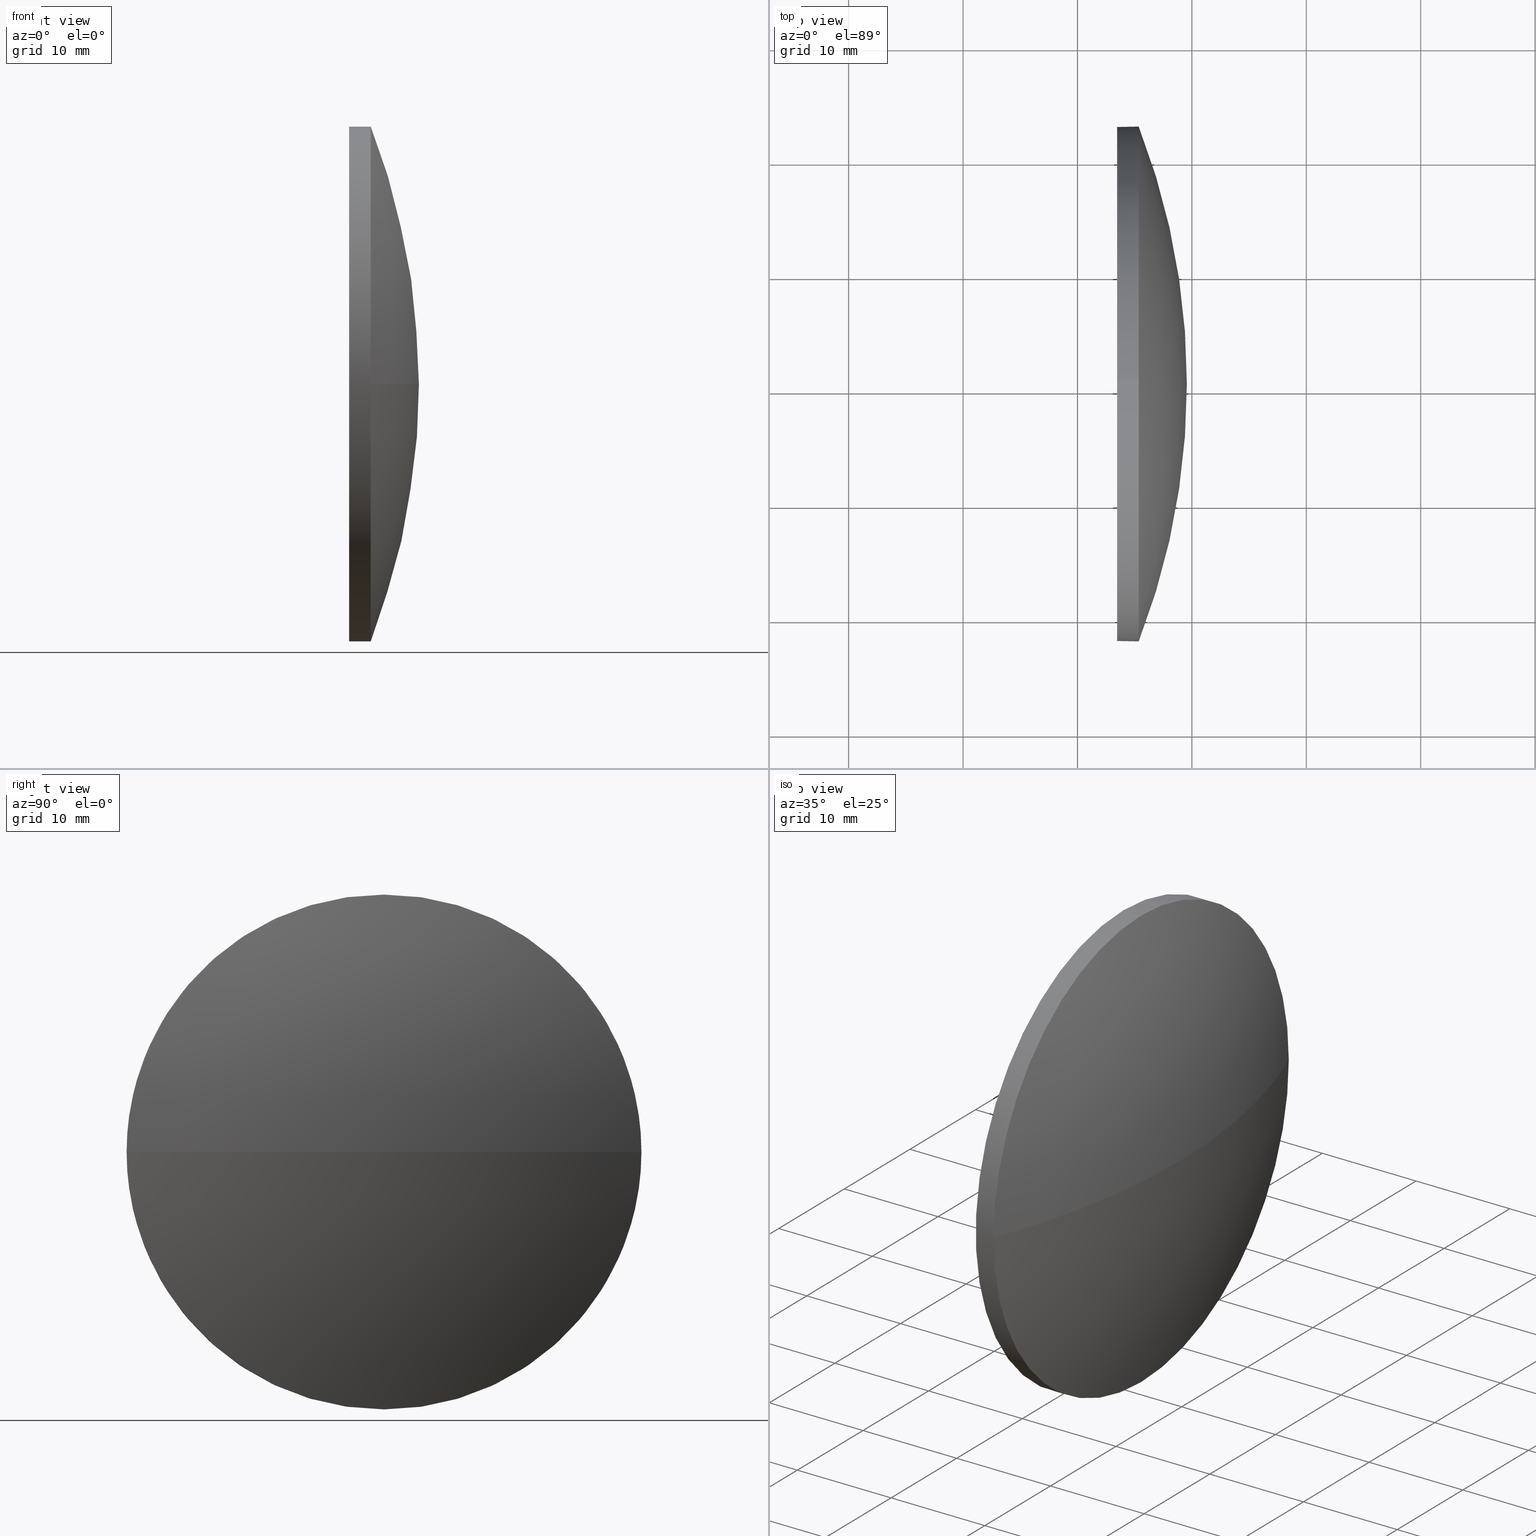
[diagram: canonical four-view strip — front | top / right | iso, engineering-drawing reading convention]
A machine part, canonical four-view strip (front | top / right | iso — engineering-drawing reading convention). The complete STEP part file that produces these views, byte-faithful:
ISO-10303-21;
HEADER;
FILE_DESCRIPTION (( 'STEP AP214' ),
    '1' );
FILE_NAME ('100065.STEP',
    '2019-04-30T06:22:48',
    ( '' ),
    ( '' ),
    'SwSTEP 2.0',
    'SolidWorks 2016',
    '' );
FILE_SCHEMA (( 'AUTOMOTIVE_DESIGN' ));
ENDSEC;

DATA;
#1 = ORIENTED_EDGE ( 'NONE', *, *, #91, .T. ) ;
#2 = STYLED_ITEM ( 'NONE', ( #31 ), #32 ) ;
#3 = PRODUCT_DEFINITION_SHAPE ( 'NONE', 'NONE',  #139 ) ;
#4 = ORIENTED_EDGE ( 'NONE', *, *, #173, .F. ) ;
#5 = ADVANCED_FACE ( 'NONE', ( #88 ), #152, .T. ) ;
#6 = CARTESIAN_POINT ( 'NONE',  ( 443.4635203188954600, 60.46347484045998000, 22.50000000000000700 ) ) ;
#7 = CARTESIAN_POINT ( 'NONE',  ( 449.5635203188954800, 60.46347484045995900, 0.0000000000000000000 ) ) ;
#8 = AXIS2_PLACEMENT_3D ( 'NONE', #34, #104, #11 ) ;
#9 = CARTESIAN_POINT ( 'NONE',  ( 443.4635203188954600, 60.46347484045998000, 0.0000000000000000000 ) ) ;
#10 = EDGE_LOOP ( 'NONE', ( #122, #166, #18, #79 ) ) ;
#11 = DIRECTION ( 'NONE',  ( 1.000000000000000000, 0.0000000000000000000, 0.0000000000000000000 ) ) ;
#12 = AXIS2_PLACEMENT_3D ( 'NONE', #96, #124, #112 ) ;
#13 = VERTEX_POINT ( 'NONE', #6 ) ;
#14 = DIRECTION ( 'NONE',  ( 0.0000000000000000000, 1.000000000000000000, 0.0000000000000000000 ) ) ;
#15 = APPLICATION_PROTOCOL_DEFINITION ( 'draft international standard', 'automotive_design', 1998, #35 ) ;
#16 = DIRECTION ( 'NONE',  ( 0.0000000000000000000, 0.0000000000000000000, 1.000000000000000000 ) ) ;
#17 = SHAPE_DEFINITION_REPRESENTATION ( #3, #32 ) ;
#18 = ORIENTED_EDGE ( 'NONE', *, *, #94, .F. ) ;
#19 = ORIENTED_EDGE ( 'NONE', *, *, #38, .T. ) ;
#20 = AXIS2_PLACEMENT_3D ( 'NONE', #67, #89, #14 ) ;
#21 = CARTESIAN_POINT ( 'NONE',  ( 387.3338172310093900, 60.46347484045995200, 0.0000000000000000000 ) ) ;
#22 = DIRECTION ( 'NONE',  ( -1.000000000000000000, -0.0000000000000000000, -0.0000000000000000000 ) ) ;
#23 = DIRECTION ( 'NONE',  ( 0.0000000000000000000, 0.0000000000000000000, -1.000000000000000000 ) ) ;
#24 = EDGE_LOOP ( 'NONE', ( #136, #163, #74, #46, #33 ) ) ;
#25 = SURFACE_STYLE_FILL_AREA ( #155 ) ;
#26 = SURFACE_STYLE_FILL_AREA ( #170 ) ;
#27 =( LENGTH_UNIT ( ) NAMED_UNIT ( * ) SI_UNIT ( .MILLI., .METRE. ) );
#28 = VECTOR ( 'NONE', #22, 1000.000000000000000 ) ;
#29 = EDGE_LOOP ( 'NONE', ( #110, #36, #37, #19, #185 ) ) ;
#30 = DIRECTION ( 'NONE',  ( 0.0000000000000000000, 0.0000000000000000000, 1.000000000000000000 ) ) ;
#31 = PRESENTATION_STYLE_ASSIGNMENT (( #70 ) ) ;
#32 = ADVANCED_BREP_SHAPE_REPRESENTATION ( '100065', ( #128, #39 ), #44 ) ;
#33 = ORIENTED_EDGE ( 'NONE', *, *, #94, .T. ) ;
#34 = CARTESIAN_POINT ( 'NONE',  ( 387.3338172310093900, 60.46347484045995200, 0.0000000000000000000 ) ) ;
#35 = APPLICATION_CONTEXT ( 'automotive_design' ) ;
#36 = ORIENTED_EDGE ( 'NONE', *, *, #138, .T. ) ;
#37 = ORIENTED_EDGE ( 'NONE', *, *, #158, .T. ) ;
#38 = EDGE_CURVE ( 'NONE', #95, #13, #71, .T. ) ;
#39 = AXIS2_PLACEMENT_3D ( 'NONE', #109, #16, #150 ) ;
#40 = DIRECTION ( 'NONE',  ( 0.0000000000000000000, 1.224646799147353200E-016, -1.000000000000000000 ) ) ;
#41 = CARTESIAN_POINT ( 'NONE',  ( 445.3535203188954500, 60.46347484045998000, 0.0000000000000000000 ) ) ;
#42 = CARTESIAN_POINT ( 'NONE',  ( 387.3338172310093900, 60.46347484045995200, 0.0000000000000000000 ) ) ;
#43 = ADVANCED_FACE ( 'NONE', ( #111 ), #65, .T. ) ;
#44 =( GEOMETRIC_REPRESENTATION_CONTEXT ( 3 ) GLOBAL_UNCERTAINTY_ASSIGNED_CONTEXT ( ( #172 ) ) GLOBAL_UNIT_ASSIGNED_CONTEXT ( ( #27, #171, #72 ) ) REPRESENTATION_CONTEXT ( 'NONE', 'WORKASPACE' ) );
#45 = CARTESIAN_POINT ( 'NONE',  ( 445.3535203188954500, 60.46347484045998000, 22.50000000000000700 ) ) ;
#46 = ORIENTED_EDGE ( 'NONE', *, *, #38, .F. ) ;
#47 = DIRECTION ( 'NONE',  ( -1.000000000000000000, -0.0000000000000000000, -0.0000000000000000000 ) ) ;
#48 = AXIS2_PLACEMENT_3D ( 'NONE', #42, #40, #153 ) ;
#49 = ORIENTED_EDGE ( 'NONE', *, *, #125, .T. ) ;
#50 = MECHANICAL_DESIGN_GEOMETRIC_PRESENTATION_REPRESENTATION (  '', ( #2 ), #73 ) ;
#51 = CIRCLE ( 'NONE', #48, 62.22970308788607200 ) ;
#52 = SPHERICAL_SURFACE ( 'NONE', #20, 62.22970308788606500 ) ;
#53 = PRODUCT_RELATED_PRODUCT_CATEGORY ( 'part', '', ( #137 ) ) ;
#54 = EDGE_LOOP ( 'NONE', ( #4, #1, #76, #126 ) ) ;
#55 = AXIS2_PLACEMENT_3D ( 'NONE', #140, #99, #80 ) ;
#56 = CIRCLE ( 'NONE', #177, 22.50000000000000700 ) ;
#57 = AXIS2_PLACEMENT_3D ( 'NONE', #41, #63, #59 ) ;
#58 = ORIENTED_EDGE ( 'NONE', *, *, #181, .T. ) ;
#59 = DIRECTION ( 'NONE',  ( 0.0000000000000000000, 0.0000000000000000000, 1.000000000000000000 ) ) ;
#60 = PRODUCT_DEFINITION_FORMATION_WITH_SPECIFIED_SOURCE ( '�κ�', '', #137, .NOT_KNOWN. ) ;
#61 = DIRECTION ( 'NONE',  ( -0.0000000000000000000, 0.0000000000000000000, -1.000000000000000000 ) ) ;
#62 = CIRCLE ( 'NONE', #57, 22.50000000000000700 ) ;
#63 = DIRECTION ( 'NONE',  ( -1.000000000000000000, -0.0000000000000000000, -0.0000000000000000000 ) ) ;
#64 = CARTESIAN_POINT ( 'NONE',  ( 443.4635203188954600, 60.46347484045998000, 0.0000000000000000000 ) ) ;
#65 = SPHERICAL_SURFACE ( 'NONE', #121, 62.22970308788606500 ) ;
#66 = CARTESIAN_POINT ( 'NONE',  ( 445.3535203188954500, 60.46347484045998000, 0.0000000000000000000 ) ) ;
#67 = CARTESIAN_POINT ( 'NONE',  ( 387.3338172310093900, 60.46347484045995200, 0.0000000000000000000 ) ) ;
#68 = STYLED_ITEM ( 'NONE', ( #174 ), #128 ) ;
#69 = CARTESIAN_POINT ( 'NONE',  ( 445.3535203188954500, 60.46347484045998000, 0.0000000000000000000 ) ) ;
#70 = SURFACE_STYLE_USAGE ( .BOTH. , #90 ) ;
#71 = LINE ( 'NONE', #115, #28 ) ;
#72 =( NAMED_UNIT ( * ) SI_UNIT ( $, .STERADIAN. ) SOLID_ANGLE_UNIT ( ) );
#73 =( GEOMETRIC_REPRESENTATION_CONTEXT ( 3 ) GLOBAL_UNCERTAINTY_ASSIGNED_CONTEXT ( ( #144 ) ) GLOBAL_UNIT_ASSIGNED_CONTEXT ( ( #151, #160, #186 ) ) REPRESENTATION_CONTEXT ( 'NONE', 'WORKASPACE' ) );
#74 = ORIENTED_EDGE ( 'NONE', *, *, #181, .F. ) ;
#75 = PRESENTATION_LAYER_ASSIGNMENT (  '', '', ( #2 ) ) ;
#76 = ORIENTED_EDGE ( 'NONE', *, *, #138, .F. ) ;
#77 = FACE_OUTER_BOUND ( 'NONE', #10, .T. ) ;
#78 = CARTESIAN_POINT ( 'NONE',  ( 445.3535203188954500, 37.96347484045995900, -2.755455298081544000E-015 ) ) ;
#79 = ORIENTED_EDGE ( 'NONE', *, *, #158, .F. ) ;
#80 = DIRECTION ( 'NONE',  ( 0.0000000000000000000, 0.0000000000000000000, 1.000000000000000000 ) ) ;
#81 = ADVANCED_FACE ( 'NONE', ( #114 ), #168, .T. ) ;
#82 = SURFACE_STYLE_USAGE ( .BOTH. , #165 ) ;
#83 = VERTEX_POINT ( 'NONE', #176 ) ;
#84 = AXIS2_PLACEMENT_3D ( 'NONE', #64, #100, #30 ) ;
#85 = DIRECTION ( 'NONE',  ( 0.0000000000000000000, 0.0000000000000000000, 1.000000000000000000 ) ) ;
#86 = VECTOR ( 'NONE', #47, 1000.000000000000000 ) ;
#87 = DIRECTION ( 'NONE',  ( 0.0000000000000000000, 0.0000000000000000000, 1.000000000000000000 ) ) ;
#88 = FACE_OUTER_BOUND ( 'NONE', #24, .T. ) ;
#89 = DIRECTION ( 'NONE',  ( -0.0000000000000000000, 0.0000000000000000000, -1.000000000000000000 ) ) ;
#90 = SURFACE_SIDE_STYLE ('',( #26 ) ) ;
#91 = EDGE_CURVE ( 'NONE', #92, #105, #51, .T. ) ;
#92 = VERTEX_POINT ( 'NONE', #7 ) ;
#93 =( GEOMETRIC_REPRESENTATION_CONTEXT ( 3 ) GLOBAL_UNCERTAINTY_ASSIGNED_CONTEXT ( ( #156 ) ) GLOBAL_UNIT_ASSIGNED_CONTEXT ( ( #129, #118, #102 ) ) REPRESENTATION_CONTEXT ( 'NONE', 'WORKASPACE' ) );
#94 = EDGE_CURVE ( 'NONE', #95, #83, #62, .T. ) ;
#95 = VERTEX_POINT ( 'NONE', #45 ) ;
#96 = CARTESIAN_POINT ( 'NONE',  ( 434.0287404337423700, 60.46347484045998000, 0.0000000000000000000 ) ) ;
#97 = CIRCLE ( 'NONE', #84, 22.50000000000000700 ) ;
#98 = FACE_OUTER_BOUND ( 'NONE', #146, .T. ) ;
#99 = DIRECTION ( 'NONE',  ( -1.000000000000000000, -0.0000000000000000000, -0.0000000000000000000 ) ) ;
#100 = DIRECTION ( 'NONE',  ( -1.000000000000000000, -0.0000000000000000000, -0.0000000000000000000 ) ) ;
#101 = AXIS2_PLACEMENT_3D ( 'NONE', #9, #116, #23 ) ;
#102 =( NAMED_UNIT ( * ) SI_UNIT ( $, .STERADIAN. ) SOLID_ANGLE_UNIT ( ) );
#103 = CIRCLE ( 'NONE', #131, 22.50000000000000700 ) ;
#104 = DIRECTION ( 'NONE',  ( -0.0000000000000000000, 0.0000000000000000000, 1.000000000000000000 ) ) ;
#105 = VERTEX_POINT ( 'NONE', #78 ) ;
#106 = MECHANICAL_DESIGN_GEOMETRIC_PRESENTATION_REPRESENTATION (  '', ( #68 ), #93 ) ;
#107 = CIRCLE ( 'NONE', #142, 22.50000000000000700 ) ;
#108 = PRESENTATION_LAYER_ASSIGNMENT (  '', '', ( #68 ) ) ;
#109 = CARTESIAN_POINT ( 'NONE',  ( 0.0000000000000000000, 0.0000000000000000000, 0.0000000000000000000 ) ) ;
#110 = ORIENTED_EDGE ( 'NONE', *, *, #135, .F. ) ;
#111 = FACE_OUTER_BOUND ( 'NONE', #54, .T. ) ;
#112 = DIRECTION ( 'NONE',  ( 0.0000000000000000000, 0.0000000000000000000, 1.000000000000000000 ) ) ;
#113 = CARTESIAN_POINT ( 'NONE',  ( 445.3535203188954500, 60.46347484045998000, -22.50000000000000700 ) ) ;
#114 = FACE_OUTER_BOUND ( 'NONE', #29, .T. ) ;
#115 = CARTESIAN_POINT ( 'NONE',  ( 434.0287404337423700, 60.46347484045998000, 22.50000000000000700 ) ) ;
#116 = DIRECTION ( 'NONE',  ( 1.000000000000000000, 0.0000000000000000000, 0.0000000000000000000 ) ) ;
#117 = CARTESIAN_POINT ( 'NONE',  ( 445.3535203188954500, 60.46347484045998000, 0.0000000000000000000 ) ) ;
#118 =( NAMED_UNIT ( * ) PLANE_ANGLE_UNIT ( ) SI_UNIT ( $, .RADIAN. ) );
#119 = VERTEX_POINT ( 'NONE', #113 ) ;
#120 = VERTEX_POINT ( 'NONE', #162 ) ;
#121 = AXIS2_PLACEMENT_3D ( 'NONE', #21, #61, #123 ) ;
#122 = ORIENTED_EDGE ( 'NONE', *, *, #91, .F. ) ;
#123 = DIRECTION ( 'NONE',  ( 0.0000000000000000000, 1.000000000000000000, 0.0000000000000000000 ) ) ;
#124 = DIRECTION ( 'NONE',  ( -1.000000000000000000, -0.0000000000000000000, -0.0000000000000000000 ) ) ;
#125 = EDGE_CURVE ( 'NONE', #120, #13, #97, .T. ) ;
#126 = ORIENTED_EDGE ( 'NONE', *, *, #161, .F. ) ;
#127 = AXIS2_PLACEMENT_3D ( 'NONE', #66, #164, #85 ) ;
#128 = MANIFOLD_SOLID_BREP ( '��ת1', #132 ) ;
#129 =( LENGTH_UNIT ( ) NAMED_UNIT ( * ) SI_UNIT ( .MILLI., .METRE. ) );
#130 = DIRECTION ( 'NONE',  ( 0.0000000000000000000, 0.0000000000000000000, 1.000000000000000000 ) ) ;
#131 = AXIS2_PLACEMENT_3D ( 'NONE', #69, #167, #143 ) ;
#132 = CLOSED_SHELL ( 'NONE', ( #5, #43, #182, #81, #180 ) ) ;
#133 = APPLICATION_PROTOCOL_DEFINITION ( 'draft international standard', 'automotive_design', 1998, #169 ) ;
#134 = CIRCLE ( 'NONE', #127, 22.50000000000000700 ) ;
#135 = EDGE_CURVE ( 'NONE', #119, #120, #179, .T. ) ;
#136 = ORIENTED_EDGE ( 'NONE', *, *, #161, .T. ) ;
#137 = PRODUCT ( '100065', '100065', '', ( #159 ) ) ;
#138 = EDGE_CURVE ( 'NONE', #119, #105, #103, .T. ) ;
#139 = PRODUCT_DEFINITION ( 'δ֪', '', #60, #175 ) ;
#140 = CARTESIAN_POINT ( 'NONE',  ( 434.0287404337423700, 60.46347484045998000, 0.0000000000000000000 ) ) ;
#141 = FILL_AREA_STYLE_COLOUR ( '', #147 ) ;
#142 = AXIS2_PLACEMENT_3D ( 'NONE', #117, #145, #87 ) ;
#143 = DIRECTION ( 'NONE',  ( 0.0000000000000000000, 0.0000000000000000000, 1.000000000000000000 ) ) ;
#144 = UNCERTAINTY_MEASURE_WITH_UNIT (LENGTH_MEASURE( 1.000000000000000100E-005 ), #151, 'distance_accuracy_value', 'NONE');
#145 = DIRECTION ( 'NONE',  ( -1.000000000000000000, -0.0000000000000000000, -0.0000000000000000000 ) ) ;
#146 = EDGE_LOOP ( 'NONE', ( #58, #49 ) ) ;
#147 = COLOUR_RGB ( '',1.000000000000000000, 1.000000000000000000, 1.000000000000000000 ) ;
#148 = COLOUR_RGB ( '',1.000000000000000000, 1.000000000000000000, 1.000000000000000000 ) ;
#149 = CARTESIAN_POINT ( 'NONE',  ( 443.4635203188954600, 60.46347484045998000, 0.0000000000000000000 ) ) ;
#150 = DIRECTION ( 'NONE',  ( 1.000000000000000000, 0.0000000000000000000, 0.0000000000000000000 ) ) ;
#151 =( LENGTH_UNIT ( ) NAMED_UNIT ( * ) SI_UNIT ( .MILLI., .METRE. ) );
#152 = CYLINDRICAL_SURFACE ( 'NONE', #55, 22.50000000000000700 ) ;
#153 = DIRECTION ( 'NONE',  ( 0.0000000000000000000, 1.000000000000000000, 1.224646799147353000E-016 ) ) ;
#154 = CIRCLE ( 'NONE', #8, 62.22970308788605800 ) ;
#155 = FILL_AREA_STYLE ('',( #141 ) ) ;
#156 = UNCERTAINTY_MEASURE_WITH_UNIT (LENGTH_MEASURE( 1.000000000000000100E-005 ), #129, 'distance_accuracy_value', 'NONE');
#157 = FILL_AREA_STYLE_COLOUR ( '', #148 ) ;
#158 = EDGE_CURVE ( 'NONE', #105, #95, #107, .T. ) ;
#159 = PRODUCT_CONTEXT ( 'NONE', #35, 'mechanical' ) ;
#160 =( NAMED_UNIT ( * ) PLANE_ANGLE_UNIT ( ) SI_UNIT ( $, .RADIAN. ) );
#161 = EDGE_CURVE ( 'NONE', #83, #119, #134, .T. ) ;
#162 = CARTESIAN_POINT ( 'NONE',  ( 443.4635203188954600, 60.46347484045998000, -22.50000000000000700 ) ) ;
#163 = ORIENTED_EDGE ( 'NONE', *, *, #135, .T. ) ;
#164 = DIRECTION ( 'NONE',  ( -1.000000000000000000, -0.0000000000000000000, -0.0000000000000000000 ) ) ;
#165 = SURFACE_SIDE_STYLE ('',( #25 ) ) ;
#166 = ORIENTED_EDGE ( 'NONE', *, *, #173, .T. ) ;
#167 = DIRECTION ( 'NONE',  ( -1.000000000000000000, -0.0000000000000000000, -0.0000000000000000000 ) ) ;
#168 = CYLINDRICAL_SURFACE ( 'NONE', #12, 22.50000000000000700 ) ;
#169 = APPLICATION_CONTEXT ( 'automotive_design' ) ;
#170 = FILL_AREA_STYLE ('',( #157 ) ) ;
#171 =( NAMED_UNIT ( * ) PLANE_ANGLE_UNIT ( ) SI_UNIT ( $, .RADIAN. ) );
#172 = UNCERTAINTY_MEASURE_WITH_UNIT (LENGTH_MEASURE( 1.000000000000000100E-005 ), #27, 'distance_accuracy_value', 'NONE');
#173 = EDGE_CURVE ( 'NONE', #92, #83, #154, .T. ) ;
#174 = PRESENTATION_STYLE_ASSIGNMENT (( #82 ) ) ;
#175 = PRODUCT_DEFINITION_CONTEXT ( 'detailed design', #169, 'design' ) ;
#176 = CARTESIAN_POINT ( 'NONE',  ( 445.3535203188954500, 82.96347484045998000, 0.0000000000000000000 ) ) ;
#177 = AXIS2_PLACEMENT_3D ( 'NONE', #149, #184, #130 ) ;
#178 = CARTESIAN_POINT ( 'NONE',  ( 434.0287404337423700, 60.46347484045998000, -22.50000000000000700 ) ) ;
#179 = LINE ( 'NONE', #178, #86 ) ;
#180 = ADVANCED_FACE ( 'NONE', ( #98 ), #183, .F. ) ;
#181 = EDGE_CURVE ( 'NONE', #13, #120, #56, .T. ) ;
#182 = ADVANCED_FACE ( 'NONE', ( #77 ), #52, .T. ) ;
#183 = PLANE ( 'NONE',  #101 ) ;
#184 = DIRECTION ( 'NONE',  ( -1.000000000000000000, -0.0000000000000000000, -0.0000000000000000000 ) ) ;
#185 = ORIENTED_EDGE ( 'NONE', *, *, #125, .F. ) ;
#186 =( NAMED_UNIT ( * ) SI_UNIT ( $, .STERADIAN. ) SOLID_ANGLE_UNIT ( ) );
ENDSEC;
END-ISO-10303-21;
